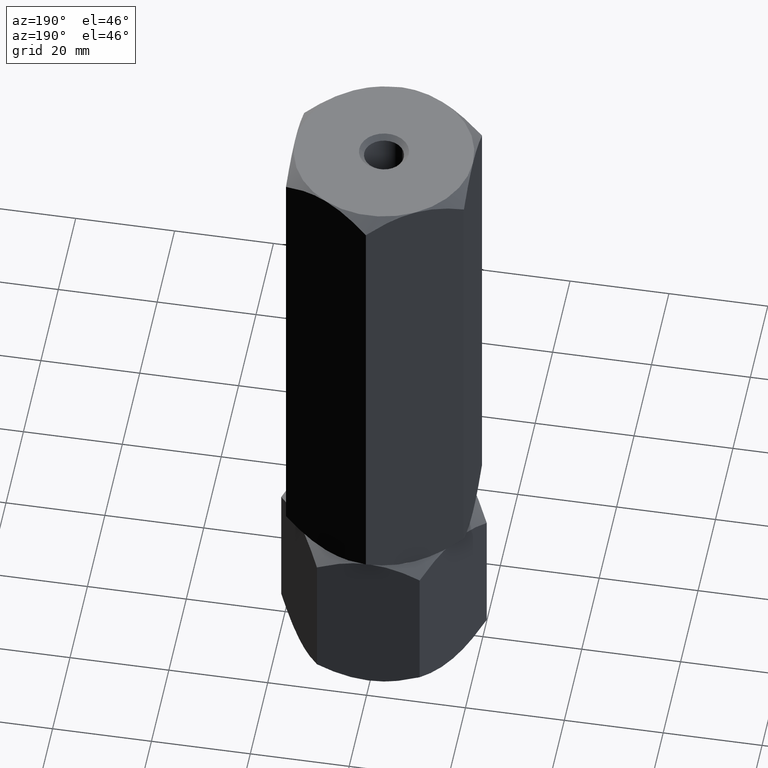
[diagram: clean part render]
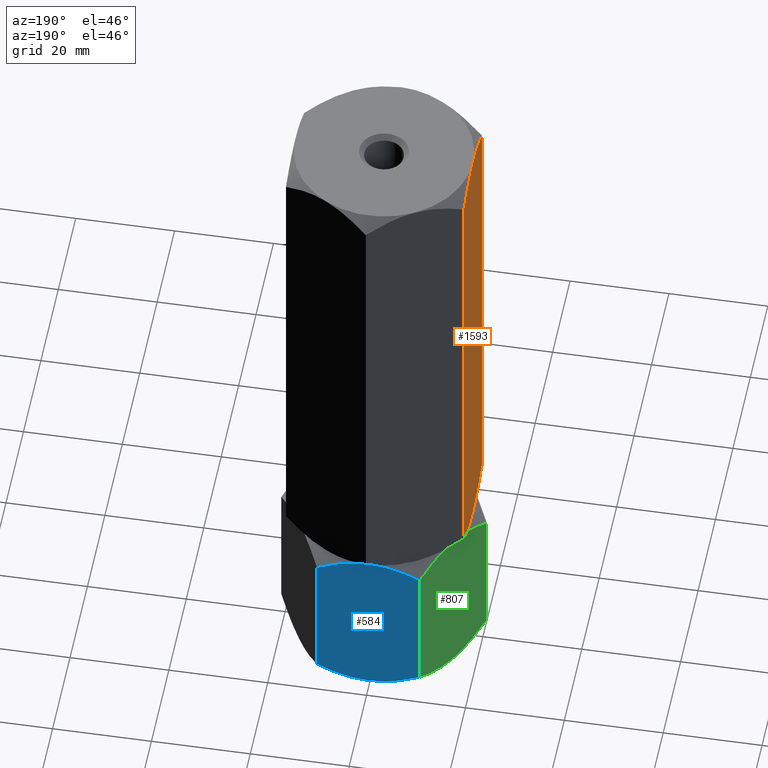
[diagram: same view with three faces highlighted in distinct colors, each labeled with its STEP entity id]
A machine part, auxiliary view with three faces highlighted in distinct colors.
Their STEP definitions:

[orange] entity #1593 — the highlighted planar face has unit normal (1, 0, -0).
#8 = CARTESIAN_POINT ( 'NONE',  ( -18.00000000000000355, 1.810443484980108986, 33.33333333333329307 ) ) ;
#27 = VERTEX_POINT ( 'NONE', #986 ) ;
#53 = CARTESIAN_POINT ( 'NONE',  ( -18.00000000000000355, 0.000000000000000000, 33.33333333333330017 ) ) ;
#110 = LINE ( 'NONE', #1222, #595 ) ;
#118 = B_SPLINE_CURVE_WITH_KNOTS ( 'NONE', 3,
 ( #1146, #1912, #1594, #176, #1833, #1967, #688, #1185, #1212, #214, #1050, #1516, #1377, #53 ),
 .UNSPECIFIED., .F., .F.,
 ( 4, 2, 2, 2, 2, 2, 4 ),
 ( 0.1004087599824664279, 0.1017054273137732029, 0.1030020946450799918, 0.1055954293076935557, 0.1081887639703071058, 0.1094854313016138947, 0.1107820986329206697 ),
 .UNSPECIFIED. ) ;
#119 = DIRECTION ( 'NONE',  ( -0.000000000000000000, -0.000000000000000000, -1.000000000000000000 ) ) ;
#122 = CARTESIAN_POINT ( 'NONE',  ( -18.00000000000000711, 8.774731520318134415, 131.3575103050543760 ) ) ;
#131 = CARTESIAN_POINT ( 'NONE',  ( -18.00000000000000711, 3.589319173232453863, 133.0001577798414019 ) ) ;
#176 = CARTESIAN_POINT ( 'NONE',  ( -18.00000000000000000, -8.765915541430075564, 35.35100532987971889 ) ) ;
#214 = CARTESIAN_POINT ( 'NONE',  ( -18.00000000000000711, -2.268365306453394847, 33.47027849005760913 ) ) ;
#216 = CARTESIAN_POINT ( 'NONE',  ( -18.00000000000000711, -10.39230484541325694, 130.5487236425067863 ) ) ;
#241 = CARTESIAN_POINT ( 'NONE',  ( -18.00000000000001066, -3.609709903701545208, 132.9962641319732768 ) ) ;
#305 = CARTESIAN_POINT ( 'NONE',  ( -18.00000000000000000, 0.000000000000000000, 133.3333333333333144 ) ) ;
#327 = CARTESIAN_POINT ( 'NONE',  ( -18.00000000000000355, -0.9087126234396247781, 133.3161085293293411 ) ) ;
#347 = CARTESIAN_POINT ( 'NONE',  ( -18.00000000000000355, 0.000000000000000000, 33.33333333333330017 ) ) ;
#350 = CARTESIAN_POINT ( 'NONE',  ( -18.00000000000000000, 7.109965447143206774, 34.61309850096016305 ) ) ;
#364 = CARTESIAN_POINT ( 'NONE',  ( -18.00000000000000355, -9.589039146339997544, 130.9503564920434258 ) ) ;
#365 = CARTESIAN_POINT ( 'NONE',  ( -18.00000000000000355, -10.39230484541325872, 36.11794302415981406 ) ) ;
#478 = CARTESIAN_POINT ( 'NONE',  ( -18.00000000000000355, -0.4526418623711488953, 133.3333333333333144 ) ) ;
#491 = CARTESIAN_POINT ( 'NONE',  ( -18.00000000000000355, 8.778074610959544444, 35.31082790693295692 ) ) ;
#506 = CARTESIAN_POINT ( 'NONE',  ( -18.00000000000000355, 10.39230484541327293, 130.5487236425067863 ) ) ;
#572 = EDGE_CURVE ( 'NONE', #620, #1671, #1608, .T. ) ;
#574 = LINE ( 'NONE', #1883, #1070 ) ;
#595 = VECTOR ( 'NONE', #119, 1000.000000000000000 ) ;
#598 = CARTESIAN_POINT ( 'NONE',  ( -18.00000000000000355, 10.39230484541327293, 36.11794302415982116 ) ) ;
#602 = CARTESIAN_POINT ( 'NONE',  ( -18.00000000000000355, 4.475081985729232770, 132.8044625281006006 ) ) ;
#620 = VERTEX_POINT ( 'NONE', #506 ) ;
#640 = CARTESIAN_POINT ( 'NONE',  ( -18.00000000000000355, 10.39230484541327293, 36.11794302415982116 ) ) ;
#642 = VERTEX_POINT ( 'NONE', #347 ) ;
#655 = EDGE_CURVE ( 'NONE', #1671, #27, #1193, .T. ) ;
#686 = ORIENTED_EDGE ( 'NONE', *, *, #766, .F. ) ;
#688 = CARTESIAN_POINT ( 'NONE',  ( -18.00000000000000355, -6.228990999673021278, 34.36251136990549782 ) ) ;
#714 = CARTESIAN_POINT ( 'NONE',  ( -18.00000000000000711, -5.792286176018565769, 132.4289044973347131 ) ) ;
#757 = CARTESIAN_POINT ( 'NONE',  ( -18.00000000000000711, 7.107311090567371537, 132.0542086361348879 ) ) ;
#766 = EDGE_CURVE ( 'NONE', #642, #1062, #1170, .T. ) ;
#786 = ORIENTED_EDGE ( 'NONE', *, *, #1100, .F. ) ;
#806 = PLANE ( 'NONE',  #1139 ) ;
#815 = CARTESIAN_POINT ( 'NONE',  ( -18.00000000000000355, 0.000000000000000000, 33.33333333333330017 ) ) ;
#823 = DIRECTION ( 'NONE',  ( -0.000000000000000000, 0.000000000000000000, -1.000000000000000000 ) ) ;
#836 = CARTESIAN_POINT ( 'NONE',  ( -17.99999999999999645, -7.080606646322093134, 131.9949414621132746 ) ) ;
#892 = ORIENTED_EDGE ( 'NONE', *, *, #925, .T. ) ;
#917 = CARTESIAN_POINT ( 'NONE',  ( -18.00000000000000355, 10.39230484541327293, 130.5487236425067863 ) ) ;
#921 = EDGE_CURVE ( 'NONE', #27, #1015, #574, .T. ) ;
#925 = EDGE_CURVE ( 'NONE', #620, #1062, #110, .T. ) ;
#958 = CARTESIAN_POINT ( 'NONE',  ( -18.00000000000000000, -1.817661187389374655, 133.2474680458177829 ) ) ;
#986 = CARTESIAN_POINT ( 'NONE',  ( -18.00000000000000711, -10.39230484541325694, 130.5487236425067863 ) ) ;
#994 = DIRECTION ( 'NONE',  ( 1.000000000000000000, 0.000000000000000000, -0.000000000000000000 ) ) ;
#1010 = CARTESIAN_POINT ( 'NONE',  ( -18.00000000000000355, -8.769604937885725704, 131.3255090817757207 ) ) ;
#1015 = VERTEX_POINT ( 'NONE', #365 ) ;
#1043 = CARTESIAN_POINT ( 'NONE',  ( -18.00000000000000711, -2.268326247884222990, 133.1963592391387579 ) ) ;
#1050 = CARTESIAN_POINT ( 'NONE',  ( -18.00000000000000355, -1.814095138421053077, 33.41883099885364317 ) ) ;
#1062 = VERTEX_POINT ( 'NONE', #598 ) ;
#1070 = VECTOR ( 'NONE', #1252, 1000.000000000000000 ) ;
#1081 = CARTESIAN_POINT ( 'NONE',  ( -18.00000000000000711, 1.805664286422173692, 133.2645055555531428 ) ) ;
#1100 = EDGE_CURVE ( 'NONE', #1015, #642, #118, .T. ) ;
#1139 = AXIS2_PLACEMENT_3D ( 'NONE', #1280, #994, #823 ) ;
#1146 = CARTESIAN_POINT ( 'NONE',  ( -18.00000000000000355, -10.39230484541325872, 36.11794302415981406 ) ) ;
#1164 = CARTESIAN_POINT ( 'NONE',  ( -18.00000000000000355, -7.507490410494521704, 131.8342518833695181 ) ) ;
#1170 = B_SPLINE_CURVE_WITH_KNOTS ( 'NONE', 3,
 ( #815, #8, #1765, #350, #491, #640 ),
 .UNSPECIFIED., .F., .F.,
 ( 4, 2, 4 ),
 ( 0.1107820986329206697, 0.1159835759449454468, 0.1211850532569702238 ),
 .UNSPECIFIED. ) ;
#1185 = CARTESIAN_POINT ( 'NONE',  ( -18.00000000000000711, -4.494632227792643597, 33.86738326141610855 ) ) ;
#1193 = B_SPLINE_CURVE_WITH_KNOTS ( 'NONE', 3,
 ( #1571, #478, #327, #958, #1043, #241, #1215, #714, #1366, #836, #1164, #1010, #364, #216 ),
 .UNSPECIFIED., .F., .F.,
 ( 4, 2, 2, 2, 2, 2, 4 ),
 ( 0.1384677957239335566, 0.1397979318438594964, 0.1411280679637854085, 0.1437883402036372604, 0.1451184763235632003, 0.1464486124434891123, 0.1491088846833409920 ),
 .UNSPECIFIED. ) ;
#1212 = CARTESIAN_POINT ( 'NONE',  ( -18.00000000000000355, -3.613967831719413937, 33.67110738872835185 ) ) ;
#1215 = CARTESIAN_POINT ( 'NONE',  ( -18.00000000000000355, -4.489815314339048236, 132.8005018324903119 ) ) ;
#1222 = CARTESIAN_POINT ( 'NONE',  ( -18.00000000000000355, 10.39230484541327293, 133.3333333333333144 ) ) ;
#1252 = DIRECTION ( 'NONE',  ( -0.000000000000000000, -0.000000000000000000, -1.000000000000000000 ) ) ;
#1280 = CARTESIAN_POINT ( 'NONE',  ( -18.00000000000000355, 10.39230484541327293, 133.3333333333333144 ) ) ;
#1311 = CARTESIAN_POINT ( 'NONE',  ( -18.00000000000000000, 0.000000000000000000, 133.3333333333333144 ) ) ;
#1366 = CARTESIAN_POINT ( 'NONE',  ( -18.00000000000000711, -6.223496946123841411, 132.2920538615294390 ) ) ;
#1377 = CARTESIAN_POINT ( 'NONE',  ( -18.00000000000000711, -0.4513223419669447067, 33.33333333333329307 ) ) ;
#1397 = ORIENTED_EDGE ( 'NONE', *, *, #921, .F. ) ;
#1516 = CARTESIAN_POINT ( 'NONE',  ( -18.00000000000000711, -0.9043953770119721458, 33.35033129737433910 ) ) ;
#1571 = CARTESIAN_POINT ( 'NONE',  ( -18.00000000000000000, 0.000000000000000000, 133.3333333333333144 ) ) ;
#1593 = ADVANCED_FACE ( 'NONE', ( #1749 ), #806, .F. ) ;
#1594 = CARTESIAN_POINT ( 'NONE',  ( -18.00000000000000711, -9.587949197936595169, 35.72437761027130421 ) ) ;
#1608 = B_SPLINE_CURVE_WITH_KNOTS ( 'NONE', 3,
 ( #917, #122, #757, #602, #131, #1081, #1721, #305 ),
 .UNSPECIFIED., .F., .F.,
 ( 4, 2, 2, 4 ),
 ( 0.1278099879825815854, 0.1331388918532575572, 0.1358033437885955708, 0.1384677957239335566 ),
 .UNSPECIFIED. ) ;
#1632 = ORIENTED_EDGE ( 'NONE', *, *, #655, .F. ) ;
#1671 = VERTEX_POINT ( 'NONE', #1311 ) ;
#1676 = ORIENTED_EDGE ( 'NONE', *, *, #572, .F. ) ;
#1721 = CARTESIAN_POINT ( 'NONE',  ( -18.00000000000001066, 0.9067060642462314579, 133.3333333333333428 ) ) ;
#1749 = FACE_OUTER_BOUND ( 'NONE', #1969, .T. ) ;
#1765 = CARTESIAN_POINT ( 'NONE',  ( -18.00000000000000711, 3.592318780390954647, 33.61070979931490399 ) ) ;
#1833 = CARTESIAN_POINT ( 'NONE',  ( -18.00000000000000355, -8.347141026087349758, 35.17082227915909698 ) ) ;
#1883 = CARTESIAN_POINT ( 'NONE',  ( -18.00000000000000355, -10.39230484541325872, 133.3333333333333144 ) ) ;
#1912 = CARTESIAN_POINT ( 'NONE',  ( -18.00000000000000355, -9.992749120313195732, 35.91816516160979234 ) ) ;
#1967 = CARTESIAN_POINT ( 'NONE',  ( -18.00000000000000711, -7.082707117959917476, 34.66128091149798252 ) ) ;
#1969 = EDGE_LOOP ( 'NONE', ( #1676, #892, #686, #786, #1397, #1632 ) ) ;

[blue] entity #584 — the highlighted planar face has unit normal (0, -1, 0).
#4 = CARTESIAN_POINT ( 'NONE',  ( -6.223364658448756970, 18.00000000000000000, 1.027362707364319450 ) ) ;
#35 = CARTESIAN_POINT ( 'NONE',  ( 0.000000000000000000, 18.00000000000000000, 0.000000000000000000 ) ) ;
#40 = CARTESIAN_POINT ( 'NONE',  ( 0.000000000000000000, 18.00000000000000000, 0.000000000000000000 ) ) ;
#153 = CARTESIAN_POINT ( 'NONE',  ( 3.137971139320011371, 17.99999999999999289, 0.2661507737096521775 ) ) ;
#156 = DIRECTION ( 'NONE',  ( -0.000000000000000000, -0.000000000000000000, -1.000000000000000000 ) ) ;
#164 = CARTESIAN_POINT ( 'NONE',  ( 10.39230484541325872, 18.00000000000000000, 33.33333333333330017 ) ) ;
#219 = CARTESIAN_POINT ( 'NONE',  ( -3.137971139319999381, 18.00000000000000000, 33.06718255962364594 ) ) ;
#240 = ORIENTED_EDGE ( 'NONE', *, *, #643, .F. ) ;
#246 = B_SPLINE_CURVE_WITH_KNOTS ( 'NONE', 3,
 ( #770, #778, #1414, #1836, #1274, #1570, #1887, #1762, #1768, #1753, #787, #1915 ),
 .UNSPECIFIED., .F., .F.,
 ( 4, 2, 2, 2, 2, 4 ),
 ( 0.05087049060338693501, 0.05355718337380664662, 0.05624387614422635823, 0.05893056891464606983, 0.06027391529985592911, 0.06161726168506578838 ),
 .UNSPECIFIED. ) ;
#247 = CARTESIAN_POINT ( 'NONE',  ( -4.913571642337144496, 18.00000000000000355, 32.67948957968728507 ) ) ;
#270 = VERTEX_POINT ( 'NONE', #814 ) ;
#282 = B_SPLINE_CURVE_WITH_KNOTS ( 'NONE', 3,
 ( #982, #1306, #1933, #992, #4, #819, #1902, #1454, #1149, #1769, #1463, #40 ),
 .UNSPECIFIED., .F., .F.,
 ( 4, 2, 2, 2, 2, 4 ),
 ( 0.05087049060338693501, 0.05355718337380665356, 0.05624387614422636517, 0.05893056891464608371, 0.06027391529985593605, 0.06161726168506579532 ),
 .UNSPECIFIED. ) ;
#381 = CARTESIAN_POINT ( 'NONE',  ( -7.110040999954855501, 17.99999999999999645, 32.05339839988549500 ) ) ;
#419 = VERTEX_POINT ( 'NONE', #1674 ) ;
#437 = EDGE_CURVE ( 'NONE', #419, #1262, #1973, .T. ) ;
#493 = VERTEX_POINT ( 'NONE', #1348 ) ;
#557 = CARTESIAN_POINT ( 'NONE',  ( -4.469866588357223058, 18.00000000000000355, 32.79169551136941152 ) ) ;
#584 = ADVANCED_FACE ( 'NONE', ( #971 ), #1582, .F. ) ;
#643 = EDGE_CURVE ( 'NONE', #1262, #1643, #282, .T. ) ;
#685 = CARTESIAN_POINT ( 'NONE',  ( -1.799853003699874110, 18.00000000000000355, 33.26509944892498538 ) ) ;
#758 = B_SPLINE_CURVE_WITH_KNOTS ( 'NONE', 3,
 ( #813, #1107, #789, #153, #1297, #960, #1583, #802, #1448, #1436 ),
 .UNSPECIFIED., .F., .F.,
 ( 4, 2, 2, 2, 4 ),
 ( 0.06161726168506579532, 0.06431523531013787209, 0.06566422212267390701, 0.06701320893520994193, 0.07240915618535409548 ),
 .UNSPECIFIED. ) ;
#770 = CARTESIAN_POINT ( 'NONE',  ( 10.39230484541325872, 18.00000000000000000, 30.54872364250678274 ) ) ;
#778 = CARTESIAN_POINT ( 'NONE',  ( 9.584903723681012622, 18.00000000000000000, 30.95242420337290312 ) ) ;
#787 = CARTESIAN_POINT ( 'NONE',  ( 0.4494445606874132304, 18.00000000000000000, 33.33333333333330017 ) ) ;
#789 = CARTESIAN_POINT ( 'NONE',  ( 1.799853003699884546, 18.00000000000000000, 0.06823388440832033053 ) ) ;
#802 = CARTESIAN_POINT ( 'NONE',  ( 7.110040999954858165, 18.00000000000000711, 1.279934933447799628 ) ) ;
#813 = CARTESIAN_POINT ( 'NONE',  ( 0.000000000000000000, 18.00000000000000000, 0.000000000000000000 ) ) ;
#814 = CARTESIAN_POINT ( 'NONE',  ( 0.000000000000000000, 18.00000000000000000, 33.33333333333330017 ) ) ;
#819 = CARTESIAN_POINT ( 'NONE',  ( -4.490362039994832521, 18.00000000000000000, 0.5330411745022592962 ) ) ;
#828 = VECTOR ( 'NONE', #1511, 1000.000000000000000 ) ;
#841 = CARTESIAN_POINT ( 'NONE',  ( -3.582737890600629527, 18.00000000000000000, 32.98534607053208845 ) ) ;
#858 = CARTESIAN_POINT ( 'NONE',  ( -10.39230484541326582, 18.00000000000000000, 2.784609690826517436 ) ) ;
#960 = CARTESIAN_POINT ( 'NONE',  ( 4.469866588357239934, 18.00000000000000711, 0.5416378219639089719 ) ) ;
#971 = FACE_OUTER_BOUND ( 'NONE', #1112, .T. ) ;
#982 = CARTESIAN_POINT ( 'NONE',  ( -10.39230484541326582, 18.00000000000000000, 2.784609690826517436 ) ) ;
#992 = CARTESIAN_POINT ( 'NONE',  ( -7.075106353536209980, 18.00000000000000000, 1.325263476329348267 ) ) ;
#1011 = EDGE_CURVE ( 'NONE', #1350, #493, #1575, .T. ) ;
#1107 = CARTESIAN_POINT ( 'NONE',  ( 0.9026633666619912066, 18.00000000000000355, -1.524659305057740610E-17 ) ) ;
#1112 = EDGE_LOOP ( 'NONE', ( #1259, #1686, #1605, #240, #2009, #1408 ) ) ;
#1149 = CARTESIAN_POINT ( 'NONE',  ( -1.804565745311151437, 18.00000000000000355, 0.08461098684225840105 ) ) ;
#1154 = CARTESIAN_POINT ( 'NONE',  ( 10.39230484541325872, 18.00000000000000000, 33.33333333333330017 ) ) ;
#1171 = CARTESIAN_POINT ( 'NONE',  ( -0.9026633666619896523, 18.00000000000000711, 33.33333333333330728 ) ) ;
#1253 = CARTESIAN_POINT ( 'NONE',  ( 10.39230484541325872, 18.00000000000000000, 30.54872364250678274 ) ) ;
#1259 = ORIENTED_EDGE ( 'NONE', *, *, #1422, .F. ) ;
#1262 = VERTEX_POINT ( 'NONE', #858 ) ;
#1274 = CARTESIAN_POINT ( 'NONE',  ( 6.223364658448745423, 18.00000000000000355, 32.30597062596897473 ) ) ;
#1295 = DIRECTION ( 'NONE',  ( 0.000000000000000000, -1.000000000000000000, 0.000000000000000000 ) ) ;
#1297 = CARTESIAN_POINT ( 'NONE',  ( 3.582737890600643738, 18.00000000000000000, 0.3479872628012178337 ) ) ;
#1306 = CARTESIAN_POINT ( 'NONE',  ( -9.584903723681016174, 18.00000000000000355, 2.380909129960397497 ) ) ;
#1348 = CARTESIAN_POINT ( 'NONE',  ( 10.39230484541325872, 18.00000000000000000, 2.784609690826514328 ) ) ;
#1350 = VERTEX_POINT ( 'NONE', #1253 ) ;
#1408 = ORIENTED_EDGE ( 'NONE', *, *, #1717, .F. ) ;
#1414 = CARTESIAN_POINT ( 'NONE',  ( 8.755178905241953302, 18.00000000000000000, 31.33178748861184459 ) ) ;
#1422 = EDGE_CURVE ( 'NONE', #1350, #270, #246, .T. ) ;
#1436 = CARTESIAN_POINT ( 'NONE',  ( 10.39230484541325872, 18.00000000000000000, 2.784609690826514328 ) ) ;
#1448 = CARTESIAN_POINT ( 'NONE',  ( 8.776755605963906248, 17.99999999999999645, 1.976835071101844088 ) ) ;
#1454 = CARTESIAN_POINT ( 'NONE',  ( -2.259904121284828538, 18.00000000000000000, 0.1358593837481692213 ) ) ;
#1463 = CARTESIAN_POINT ( 'NONE',  ( -0.4494445606874136190, 18.00000000000000355, 7.199780051661526689E-18 ) ) ;
#1511 = DIRECTION ( 'NONE',  ( -0.000000000000000000, -0.000000000000000000, -1.000000000000000000 ) ) ;
#1570 = CARTESIAN_POINT ( 'NONE',  ( 4.490362039994821863, 18.00000000000000355, 32.80029215883104143 ) ) ;
#1575 = LINE ( 'NONE', #1154, #1783 ) ;
#1582 = PLANE ( 'NONE',  #1620 ) ;
#1583 = CARTESIAN_POINT ( 'NONE',  ( 4.913571642337147161, 18.00000000000000000, 0.6538437536460134369 ) ) ;
#1598 = DIRECTION ( 'NONE',  ( 0.000000000000000000, -0.000000000000000000, -1.000000000000000000 ) ) ;
#1605 = ORIENTED_EDGE ( 'NONE', *, *, #2017, .F. ) ;
#1620 = AXIS2_PLACEMENT_3D ( 'NONE', #164, #1295, #1598 ) ;
#1643 = VERTEX_POINT ( 'NONE', #35 ) ;
#1646 = CARTESIAN_POINT ( 'NONE',  ( -10.39230484541326582, 18.00000000000000000, 33.33333333333330017 ) ) ;
#1674 = CARTESIAN_POINT ( 'NONE',  ( -10.39230484541326582, 18.00000000000000000, 30.54872364250677919 ) ) ;
#1686 = ORIENTED_EDGE ( 'NONE', *, *, #1011, .T. ) ;
#1717 = EDGE_CURVE ( 'NONE', #270, #419, #1822, .T. ) ;
#1753 = CARTESIAN_POINT ( 'NONE',  ( 0.9002413815126234509, 18.00000000000000355, 33.31647646091370518 ) ) ;
#1762 = CARTESIAN_POINT ( 'NONE',  ( 2.259904121284829426, 18.00000000000000711, 33.19747394958513098 ) ) ;
#1768 = CARTESIAN_POINT ( 'NONE',  ( 1.804565745311149216, 17.99999999999999645, 33.24872234649103575 ) ) ;
#1769 = CARTESIAN_POINT ( 'NONE',  ( -0.9002413815126235619, 18.00000000000000000, 0.01685687241959241828 ) ) ;
#1780 = CARTESIAN_POINT ( 'NONE',  ( -10.39230484541326582, 18.00000000000000000, 30.54872364250677919 ) ) ;
#1783 = VECTOR ( 'NONE', #156, 1000.000000000000000 ) ;
#1804 = CARTESIAN_POINT ( 'NONE',  ( -8.776755605963906248, 18.00000000000000355, 31.35649826223145453 ) ) ;
#1822 = B_SPLINE_CURVE_WITH_KNOTS ( 'NONE', 3,
 ( #1829, #1171, #685, #219, #841, #557, #247, #381, #1804, #1780 ),
 .UNSPECIFIED., .F., .F.,
 ( 4, 2, 2, 2, 4 ),
 ( 0.06161726168506578838, 0.06431523531013785822, 0.06566422212267389313, 0.06701320893520992805, 0.07240915618535409548 ),
 .UNSPECIFIED. ) ;
#1829 = CARTESIAN_POINT ( 'NONE',  ( 0.000000000000000000, 18.00000000000000000, 33.33333333333330017 ) ) ;
#1836 = CARTESIAN_POINT ( 'NONE',  ( 7.075106353536198434, 17.99999999999999289, 32.00806985700393170 ) ) ;
#1887 = CARTESIAN_POINT ( 'NONE',  ( 3.609079520572076483, 18.00000000000000355, 32.99663868068220296 ) ) ;
#1902 = CARTESIAN_POINT ( 'NONE',  ( -3.609079520572075594, 17.99999999999999289, 0.3366946526511033211 ) ) ;
#1915 = CARTESIAN_POINT ( 'NONE',  ( 0.000000000000000000, 18.00000000000000000, 33.33333333333330017 ) ) ;
#1933 = CARTESIAN_POINT ( 'NONE',  ( -8.755178905241962184, 17.99999999999999645, 2.001545844721461354 ) ) ;
#1973 = LINE ( 'NONE', #1646, #828 ) ;
#2009 = ORIENTED_EDGE ( 'NONE', *, *, #437, .F. ) ;
#2017 = EDGE_CURVE ( 'NONE', #1643, #493, #758, .T. ) ;

[green] entity #807 — the highlighted planar face has unit normal (0.866, -0.5, 0).
#34 = CARTESIAN_POINT ( 'NONE',  ( -15.81600583360882162, 8.605874323383764235, 9.073605160531897768E-16 ) ) ;
#51 = CARTESIAN_POINT ( 'NONE',  ( -15.58845726811989607, 8.999999999999996447, 0.000000000000000000 ) ) ;
#142 = DIRECTION ( 'NONE',  ( 0.4999999999999998335, 0.8660254037844387076, 0.000000000000000000 ) ) ;
#191 = CARTESIAN_POINT ( 'NONE',  ( -20.78460969082652809, -3.746502714695151746E-15, 2.784609690826518325 ) ) ;
#217 = CARTESIAN_POINT ( 'NONE',  ( -10.39230484541326582, 18.00000000000000000, 30.54872364250677919 ) ) ;
#253 = CARTESIAN_POINT ( 'NONE',  ( -15.58845726811989607, 8.999999999999996447, 33.33333333333330017 ) ) ;
#279 = CARTESIAN_POINT ( 'NONE',  ( -20.78460969082652809, -3.512511347539742526E-15, 33.33333333333330017 ) ) ;
#284 = CARTESIAN_POINT ( 'NONE',  ( -19.13297464765287614, 2.860715810337961518, 32.06075863182904584 ) ) ;
#296 = CARTESIAN_POINT ( 'NONE',  ( -10.39230484541326582, 18.00000000000000000, 33.33333333333330017 ) ) ;
#318 = PLANE ( 'NONE',  #1486 ) ;
#331 = CARTESIAN_POINT ( 'NONE',  ( -19.13650452186756823, 2.854601888853808056, 1.277383077889870266 ) ) ;
#363 = ORIENTED_EDGE ( 'NONE', *, *, #1283, .F. ) ;
#388 = CARTESIAN_POINT ( 'NONE',  ( -11.20713682960488633, 16.58866960374795596, 31.36355562669838903 ) ) ;
#412 = CARTESIAN_POINT ( 'NONE',  ( -13.77442836864821984, 12.14199022028319597, 32.99277023107802620 ) ) ;
#419 = VERTEX_POINT ( 'NONE', #1674 ) ;
#437 = EDGE_CURVE ( 'NONE', #419, #1262, #1973, .T. ) ;
#523 = CARTESIAN_POINT ( 'NONE',  ( -15.13208409062669801, 9.790461530629871234, 33.31600047685920885 ) ) ;
#528 = CARTESIAN_POINT ( 'NONE',  ( -10.39230484541326582, 18.00000000000000000, 2.784609690826517436 ) ) ;
#544 = CARTESIAN_POINT ( 'NONE',  ( -15.58845726811989607, 8.999999999999996447, 0.000000000000000000 ) ) ;
#550 = EDGE_LOOP ( 'NONE', ( #363, #1832, #755, #1818, #817, #2032 ) ) ;
#559 = CARTESIAN_POINT ( 'NONE',  ( -11.20619321075668573, 16.59030399953601886, 1.970721325483050235 ) ) ;
#585 = B_SPLINE_CURVE_WITH_KNOTS ( 'NONE', 3,
 ( #51, #1640, #1992, #721, #559, #528 ),
 .UNSPECIFIED., .F., .F.,
 ( 4, 2, 4 ),
 ( 0.01077282027732746894, 0.01612137750481873466, 0.02146993473231000038 ),
 .UNSPECIFIED. ) ;
#593 = CARTESIAN_POINT ( 'NONE',  ( -20.78460969082652809, -3.746502714695151746E-15, 2.784609690826518325 ) ) ;
#607 = CARTESIAN_POINT ( 'NONE',  ( -19.97072132548310819, 1.409696000463982024, 31.36261200785025238 ) ) ;
#619 = B_SPLINE_CURVE_WITH_KNOTS ( 'NONE', 3,
 ( #191, #1906, #331, #963, #1151, #822, #1438, #975, #34, #1450 ),
 .UNSPECIFIED., .F., .F.,
 ( 4, 2, 2, 2, 4 ),
 ( 2.544307986798773666E-07, 0.005386537354063075135, 0.008079678815695271604, 0.009426249546511372007, 0.01077282027732746894 ),
 .UNSPECIFIED. ) ;
#721 = CARTESIAN_POINT ( 'NONE',  ( -12.04393988858690712, 15.13928418966203004, 1.272574701504243677 ) ) ;
#726 = CARTESIAN_POINT ( 'NONE',  ( -13.33524813246347307, 12.90267270303527170, 32.79624777750428422 ) ) ;
#755 = ORIENTED_EDGE ( 'NONE', *, *, #1159, .F. ) ;
#774 = EDGE_CURVE ( 'NONE', #1197, #1042, #619, .T. ) ;
#807 = ADVANCED_FACE ( 'NONE', ( #1254 ), #318, .F. ) ;
#817 = ORIENTED_EDGE ( 'NONE', *, *, #1803, .F. ) ;
#822 = CARTESIAN_POINT ( 'NONE',  ( -16.72971695024925154, 7.023280245922045140, 0.1387225990985769819 ) ) ;
#828 = VECTOR ( 'NONE', #1511, 1000.000000000000000 ) ;
#858 = CARTESIAN_POINT ( 'NONE',  ( -10.39230484541326582, 18.00000000000000000, 2.784609690826517436 ) ) ;
#963 = CARTESIAN_POINT ( 'NONE',  ( -17.84166640377631907, 5.097327296964719423, 0.5370855558290095200 ) ) ;
#975 = CARTESIAN_POINT ( 'NONE',  ( -16.04483044561310479, 8.209538469370125213, 0.01733285647408998667 ) ) ;
#1012 = CARTESIAN_POINT ( 'NONE',  ( -12.04041001437222924, 15.14539811114618928, 32.05595025544343457 ) ) ;
#1042 = VERTEX_POINT ( 'NONE', #544 ) ;
#1067 = LINE ( 'NONE', #279, #2001 ) ;
#1072 = CARTESIAN_POINT ( 'NONE',  ( -20.78460969082652809, -3.746502714695151746E-15, 30.54872364250677919 ) ) ;
#1129 = EDGE_CURVE ( 'NONE', #2051, #1411, #1530, .T. ) ;
#1151 = CARTESIAN_POINT ( 'NONE',  ( -17.40248616759157230, 5.858009779716798704, 0.3405631022552688125 ) ) ;
#1159 = EDGE_CURVE ( 'NONE', #1042, #1262, #585, .T. ) ;
#1179 = CARTESIAN_POINT ( 'NONE',  ( -14.44719758599054238, 10.97671975407794953, 33.19461073423472186 ) ) ;
#1188 = CARTESIAN_POINT ( 'NONE',  ( -14.67378923359658316, 10.58425150785354241, 33.24638644321514391 ) ) ;
#1195 = CARTESIAN_POINT ( 'NONE',  ( -16.49227650070744033, 7.434539168300457135, 33.33333333333330017 ) ) ;
#1197 = VERTEX_POINT ( 'NONE', #593 ) ;
#1254 = FACE_OUTER_BOUND ( 'NONE', #550, .T. ) ;
#1262 = VERTEX_POINT ( 'NONE', #858 ) ;
#1283 = EDGE_CURVE ( 'NONE', #419, #2051, #1751, .T. ) ;
#1359 = CARTESIAN_POINT ( 'NONE',  ( -15.58845726811989607, 8.999999999999996447, 33.33333333333330017 ) ) ;
#1381 = DIRECTION ( 'NONE',  ( -0.000000000000000000, -0.000000000000000000, -1.000000000000000000 ) ) ;
#1411 = VERTEX_POINT ( 'NONE', #1072 ) ;
#1438 = CARTESIAN_POINT ( 'NONE',  ( -16.50312530264320543, 7.415748492146450488, 0.08694689011815480428 ) ) ;
#1450 = CARTESIAN_POINT ( 'NONE',  ( -15.58845726811989607, 8.999999999999996447, 0.000000000000000000 ) ) ;
#1486 = AXIS2_PLACEMENT_3D ( 'NONE', #296, #1572, #142 ) ;
#1511 = DIRECTION ( 'NONE',  ( -0.000000000000000000, -0.000000000000000000, -1.000000000000000000 ) ) ;
#1530 = B_SPLINE_CURVE_WITH_KNOTS ( 'NONE', 3,
 ( #1982, #1195, #1701, #284, #607, #1732 ),
 .UNSPECIFIED., .F., .F.,
 ( 4, 2, 4 ),
 ( 0.01077282027732747241, 0.01612137750481874160, 0.02146993473231000732 ),
 .UNSPECIFIED. ) ;
#1572 = DIRECTION ( 'NONE',  ( 0.8660254037844387076, -0.4999999999999998335, 0.000000000000000000 ) ) ;
#1640 = CARTESIAN_POINT ( 'NONE',  ( -14.68463803553235181, 10.56546083169953398, 7.623296525288700093E-16 ) ) ;
#1646 = CARTESIAN_POINT ( 'NONE',  ( -10.39230484541326582, 18.00000000000000000, 33.33333333333330017 ) ) ;
#1674 = CARTESIAN_POINT ( 'NONE',  ( -10.39230484541326582, 18.00000000000000000, 30.54872364250677919 ) ) ;
#1701 = CARTESIAN_POINT ( 'NONE',  ( -17.38072716576608912, 5.895697476400517445, 33.05693742621171083 ) ) ;
#1732 = CARTESIAN_POINT ( 'NONE',  ( -20.78460969082652809, -3.746502714695151746E-15, 30.54872364250677919 ) ) ;
#1751 = B_SPLINE_CURVE_WITH_KNOTS ( 'NONE', 3,
 ( #217, #388, #1012, #726, #412, #1179, #1188, #523, #1812, #1359 ),
 .UNSPECIFIED., .F., .F.,
 ( 4, 2, 2, 2, 4 ),
 ( 2.544307986796311447E-07, 0.005386537354063075135, 0.008079678815695275074, 0.009426249546511373742, 0.01077282027732747241 ),
 .UNSPECIFIED. ) ;
#1803 = EDGE_CURVE ( 'NONE', #1411, #1197, #1067, .T. ) ;
#1812 = CARTESIAN_POINT ( 'NONE',  ( -15.36090870263097230, 9.394125676616230436, 33.33333333333330728 ) ) ;
#1818 = ORIENTED_EDGE ( 'NONE', *, *, #774, .F. ) ;
#1832 = ORIENTED_EDGE ( 'NONE', *, *, #437, .T. ) ;
#1906 = CARTESIAN_POINT ( 'NONE',  ( -19.96977770663490759, 1.411330396252044483, 1.969777706634901815 ) ) ;
#1973 = LINE ( 'NONE', #1646, #828 ) ;
#1982 = CARTESIAN_POINT ( 'NONE',  ( -15.58845726811989607, 8.999999999999996447, 33.33333333333330017 ) ) ;
#1992 = CARTESIAN_POINT ( 'NONE',  ( -13.79618737047370480, 12.10430252359947900, 0.2763959071215847385 ) ) ;
#2001 = VECTOR ( 'NONE', #1381, 1000.000000000000000 ) ;
#2032 = ORIENTED_EDGE ( 'NONE', *, *, #1129, .F. ) ;
#2051 = VERTEX_POINT ( 'NONE', #253 ) ;